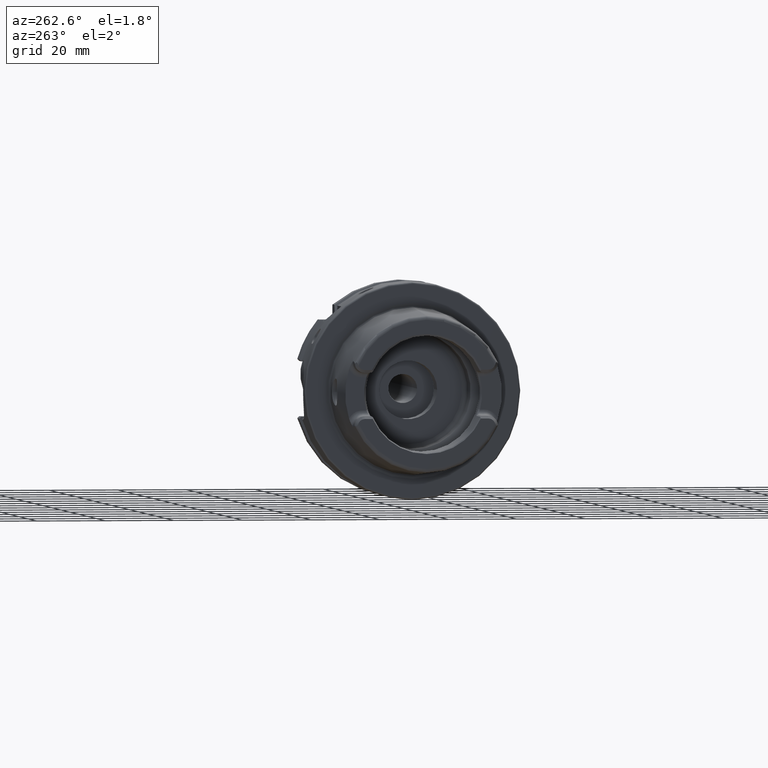
[diagram: clean part render]
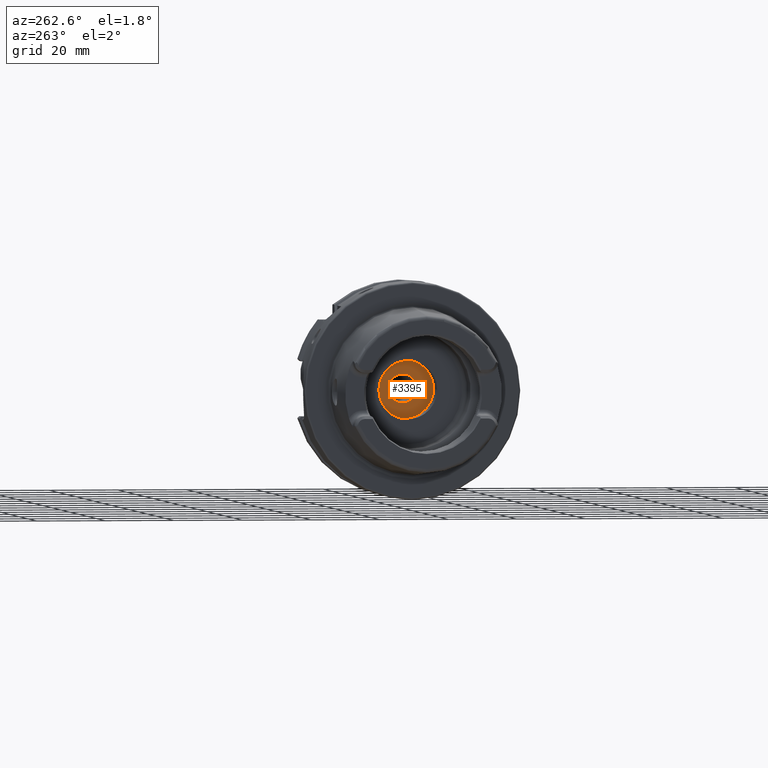
[diagram: same view with one face highlighted and labeled with its STEP entity id]
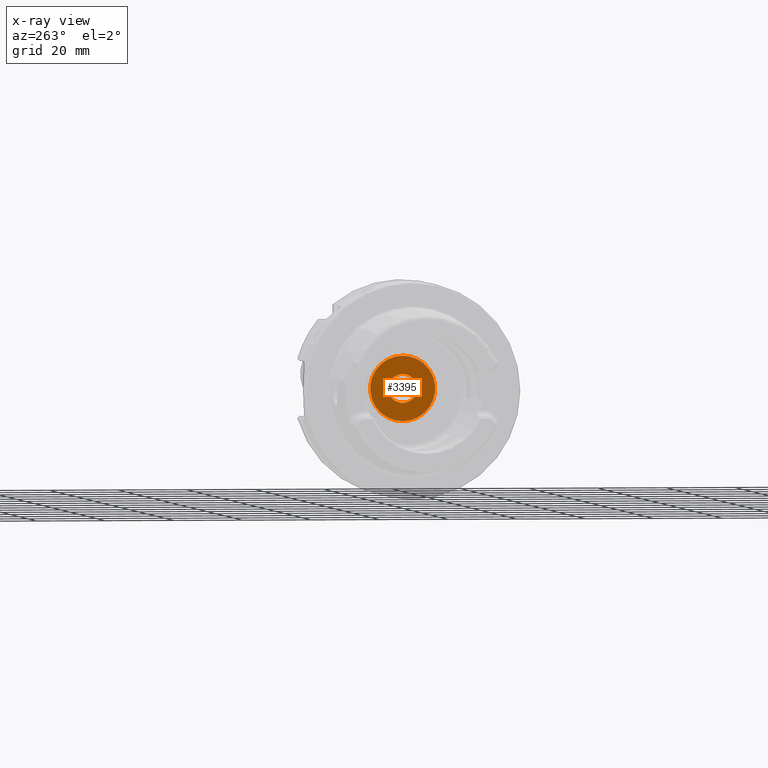
[diagram: x-ray of the same camera — body ghosted, the highlighted face saturated]
A machine part, auxiliary view. The second image highlights one B-rep face of the part: STEP entity #3395.
The next image is the same camera in x-ray: the body ghosted, the highlighted face saturated — about 0% of this face is hidden behind the body in this view.
In plain terms, the highlighted planar face has unit normal (1, 0, 0).
Its self-contained STEP definition (entity closure, byte-faithful):
#382=CARTESIAN_POINT('',(2.2E1,0.E0,0.E0));
#383=DIRECTION('',(-1.E0,0.E0,0.E0));
#384=DIRECTION('',(0.E0,0.E0,-1.E0));
#385=AXIS2_PLACEMENT_3D('',#382,#383,#384);
#391=CARTESIAN_POINT('',(2.2E1,0.E0,0.E0));
#392=DIRECTION('',(1.E0,0.E0,0.E0));
#393=DIRECTION('',(0.E0,0.E0,-1.E0));
#394=AXIS2_PLACEMENT_3D('',#391,#392,#393);
#396=CARTESIAN_POINT('',(2.2E1,0.E0,0.E0));
#397=DIRECTION('',(-1.E0,0.E0,0.E0));
#398=DIRECTION('',(0.E0,1.E0,0.E0));
#399=AXIS2_PLACEMENT_3D('',#396,#397,#398);
#401=CARTESIAN_POINT('',(2.2E1,0.E0,0.E0));
#402=DIRECTION('',(-1.E0,0.E0,0.E0));
#403=DIRECTION('',(0.E0,-1.E0,0.E0));
#404=AXIS2_PLACEMENT_3D('',#401,#402,#403);
#2579=CARTESIAN_POINT('',(2.2E1,0.E0,-9.5E0));
#2581=VERTEX_POINT('',#2579);
#2583=CARTESIAN_POINT('',(2.2E1,0.E0,9.5E0));
#2585=VERTEX_POINT('',#2583);
#3010=CARTESIAN_POINT('',(2.2E1,4.2E0,0.E0));
#3011=CARTESIAN_POINT('',(2.2E1,-4.2E0,0.E0));
#3012=VERTEX_POINT('',#3010);
#3013=VERTEX_POINT('',#3011);
#3380=CARTESIAN_POINT('',(2.2E1,0.E0,0.E0));
#3381=DIRECTION('',(1.E0,0.E0,0.E0));
#3382=DIRECTION('',(0.E0,0.E0,1.E0));
#3383=AXIS2_PLACEMENT_3D('',#3380,#3381,#3382);
#3384=PLANE('',#3383);
#3385=ORIENTED_EDGE('',*,*,#3359,.F.);
#3386=ORIENTED_EDGE('',*,*,#3375,.T.);
#3387=EDGE_LOOP('',(#3385,#3386));
#3388=FACE_OUTER_BOUND('',#3387,.F.);
#3390=ORIENTED_EDGE('',*,*,#3389,.T.);
#3392=ORIENTED_EDGE('',*,*,#3391,.T.);
#3393=EDGE_LOOP('',(#3390,#3392));
#3394=FACE_BOUND('',#3393,.F.);
#3395=ADVANCED_FACE('',(#3388,#3394),#3384,.F.);
#386=CIRCLE('',#385,9.5E0);
#395=CIRCLE('',#394,9.5E0);
#400=CIRCLE('',#399,4.2E0);
#405=CIRCLE('',#404,4.2E0);
#3359=EDGE_CURVE('',#2581,#2585,#386,.T.);
#3375=EDGE_CURVE('',#2581,#2585,#395,.T.);
#3389=EDGE_CURVE('',#3012,#3013,#400,.T.);
#3391=EDGE_CURVE('',#3013,#3012,#405,.T.);